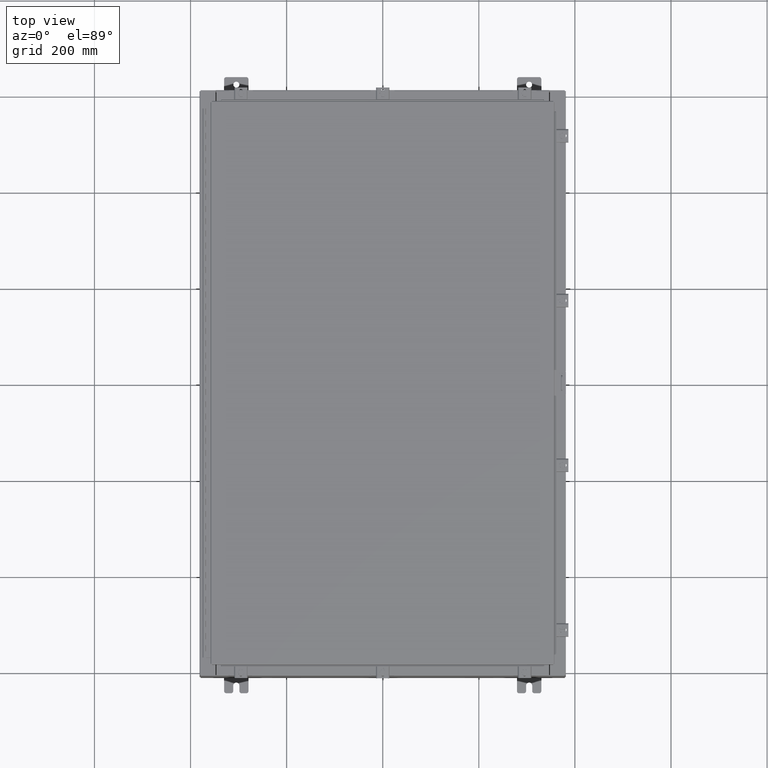
[diagram: clean part render]
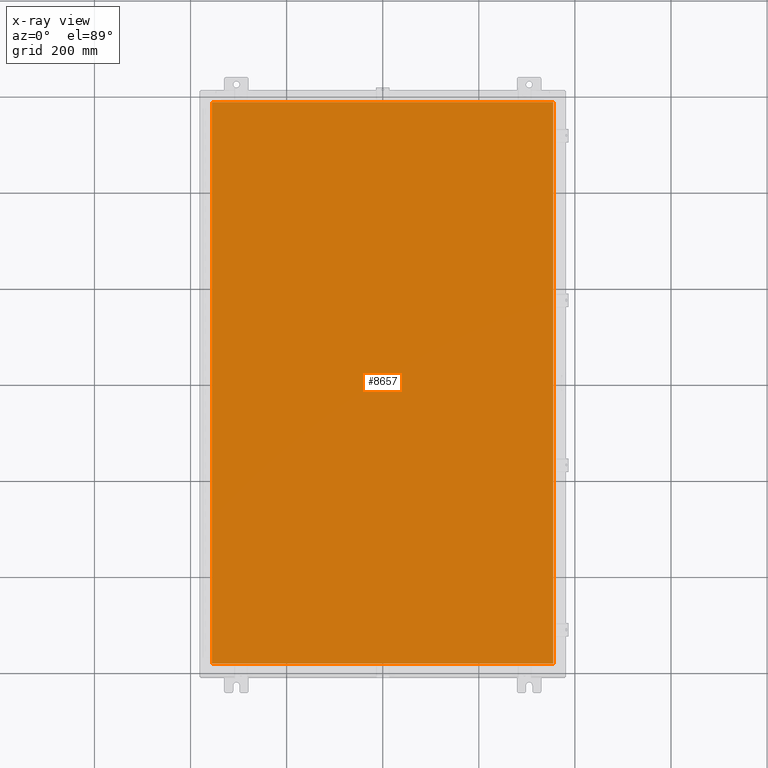
[diagram: x-ray — body ghosted, one internal face saturated and labeled with its STEP entity id]
A machine part, top view, then the same camera in x-ray: the body is ghosted and one INTERNAL B-rep face — a face not visible from any outside direction — is saturated and labeled: STEP entity #8657.
In plain terms, the highlighted planar face has unit normal (0, 0, -1).
Its self-contained STEP definition (entity closure, byte-faithful):
#3996 = VECTOR ( 'NONE', #25832, 39.37007874015748100 ) ;
#6074 = DIRECTION ( 'NONE',  ( 0.0000000000000000000, -1.000000000000000000, 0.0000000000000000000 ) ) ;
#6418 = CARTESIAN_POINT ( 'NONE',  ( -13.99029999999999800, -23.00630000000000000, -0.07470000000000015500 ) ) ;
#8657 = ADVANCED_FACE ( 'NONE', ( #29009 ), #43685, .T. ) ;
#10345 = VECTOR ( 'NONE', #6074, 39.37007874015748100 ) ;
#11096 = VERTEX_POINT ( 'NONE', #36679 ) ;
#11450 = VECTOR ( 'NONE', #16259, 39.37007874015748100 ) ;
#12213 = CARTESIAN_POINT ( 'NONE',  ( -13.99029999999999800, -23.00630000000000300, -0.07469999999999797600 ) ) ;
#13974 = EDGE_CURVE ( 'NONE', #11096, #44926, #35168, .T. ) ;
#13993 = LINE ( 'NONE', #12213, #11450 ) ;
#14559 = VERTEX_POINT ( 'NONE', #6418 ) ;
#15390 = DIRECTION ( 'NONE',  ( 0.0000000000000000000, 0.0000000000000000000, -1.000000000000000000 ) ) ;
#16259 = DIRECTION ( 'NONE',  ( 1.000000000000000000, -0.0000000000000000000, -0.0000000000000000000 ) ) ;
#21135 = LINE ( 'NONE', #30436, #10345 ) ;
#21641 = DIRECTION ( 'NONE',  ( 0.0000000000000000000, 1.000000000000000000, 0.0000000000000000000 ) ) ;
#23160 = EDGE_CURVE ( 'NONE', #44926, #14559, #21135, .T. ) ;
#23389 = LINE ( 'NONE', #46035, #43751 ) ;
#24035 = ORIENTED_EDGE ( 'NONE', *, *, #29783, .F. ) ;
#25832 = DIRECTION ( 'NONE',  ( -1.000000000000000000, -0.0000000000000000000, -0.0000000000000000000 ) ) ;
#26940 = AXIS2_PLACEMENT_3D ( 'NONE', #35655, #15390, #43858 ) ;
#27628 = EDGE_CURVE ( 'NONE', #14559, #28630, #13993, .T. ) ;
#28630 = VERTEX_POINT ( 'NONE', #46687 ) ;
#29009 = FACE_OUTER_BOUND ( 'NONE', #50671, .T. ) ;
#29019 = CARTESIAN_POINT ( 'NONE',  ( -13.99029999999999800, 23.00630000000000300, -0.07470000000000015500 ) ) ;
#29783 = EDGE_CURVE ( 'NONE', #28630, #11096, #23389, .T. ) ;
#30436 = CARTESIAN_POINT ( 'NONE',  ( -13.99029999999999800, 23.00630000000000300, -0.07470000000000015500 ) ) ;
#32860 = ORIENTED_EDGE ( 'NONE', *, *, #13974, .F. ) ;
#35168 = LINE ( 'NONE', #42002, #3996 ) ;
#35655 = CARTESIAN_POINT ( 'NONE',  ( 0.0000000000000000000, 0.0000000000000000000, -0.07470000000000015500 ) ) ;
#36679 = CARTESIAN_POINT ( 'NONE',  ( 13.99029999999999800, 23.00630000000000300, -0.07470000000000015500 ) ) ;
#41818 = ORIENTED_EDGE ( 'NONE', *, *, #27628, .F. ) ;
#42002 = CARTESIAN_POINT ( 'NONE',  ( 13.99029999999999800, 23.00630000000001000, -0.07469999999999797600 ) ) ;
#43685 = PLANE ( 'NONE',  #26940 ) ;
#43751 = VECTOR ( 'NONE', #21641, 39.37007874015748100 ) ;
#43858 = DIRECTION ( 'NONE',  ( -1.000000000000000000, 0.0000000000000000000, -0.0000000000000000000 ) ) ;
#44926 = VERTEX_POINT ( 'NONE', #29019 ) ;
#46035 = CARTESIAN_POINT ( 'NONE',  ( 13.99029999999999800, -23.00630000000000300, -0.07470000000000015500 ) ) ;
#46687 = CARTESIAN_POINT ( 'NONE',  ( 13.99029999999999800, -23.00630000000000000, -0.07470000000000015500 ) ) ;
#50671 = EDGE_LOOP ( 'NONE', ( #24035, #41818, #51956, #32860 ) ) ;
#51956 = ORIENTED_EDGE ( 'NONE', *, *, #23160, .F. ) ;